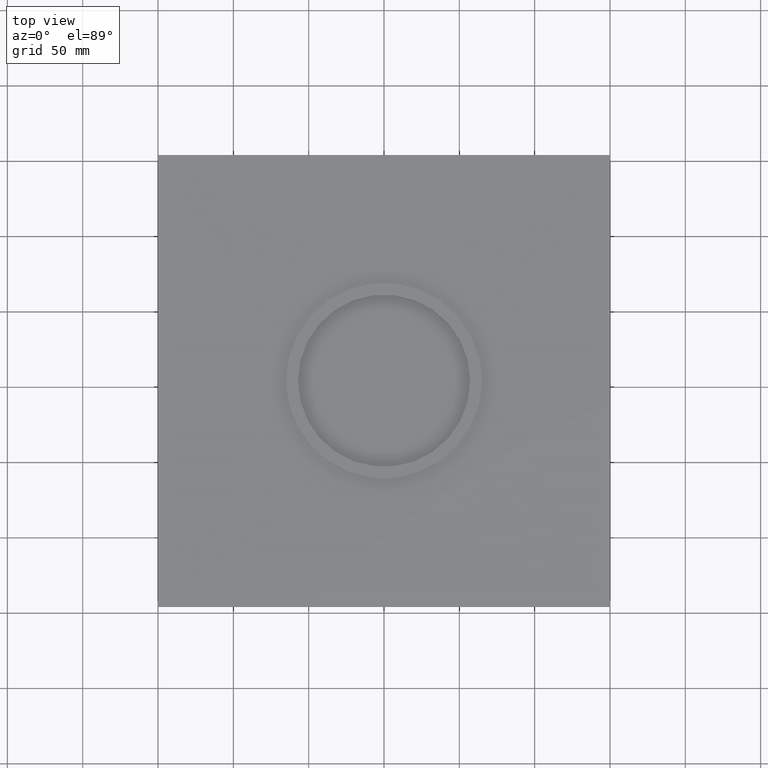
[diagram: clean part render]
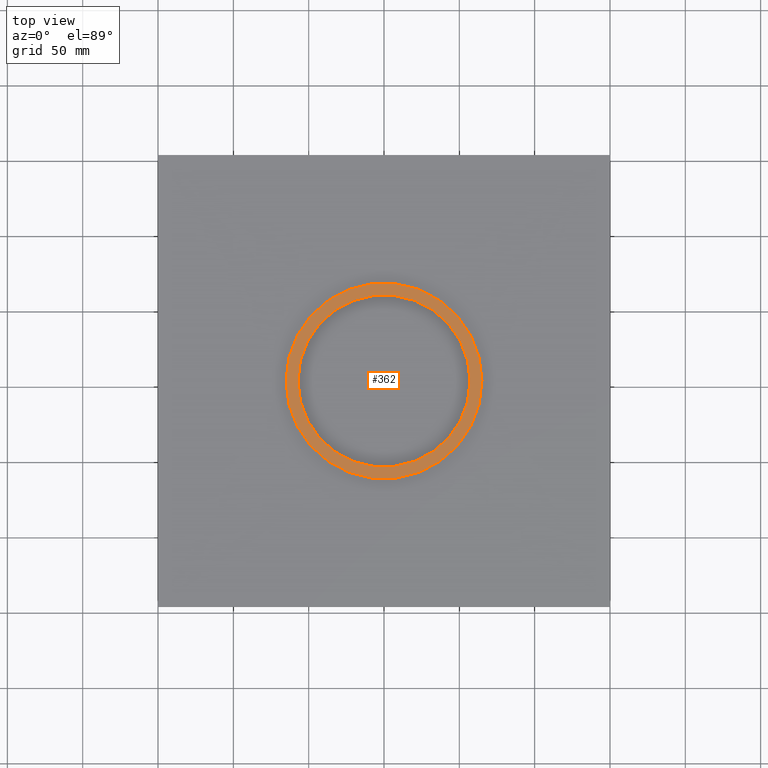
[diagram: same view with one face highlighted and labeled with its STEP entity id]
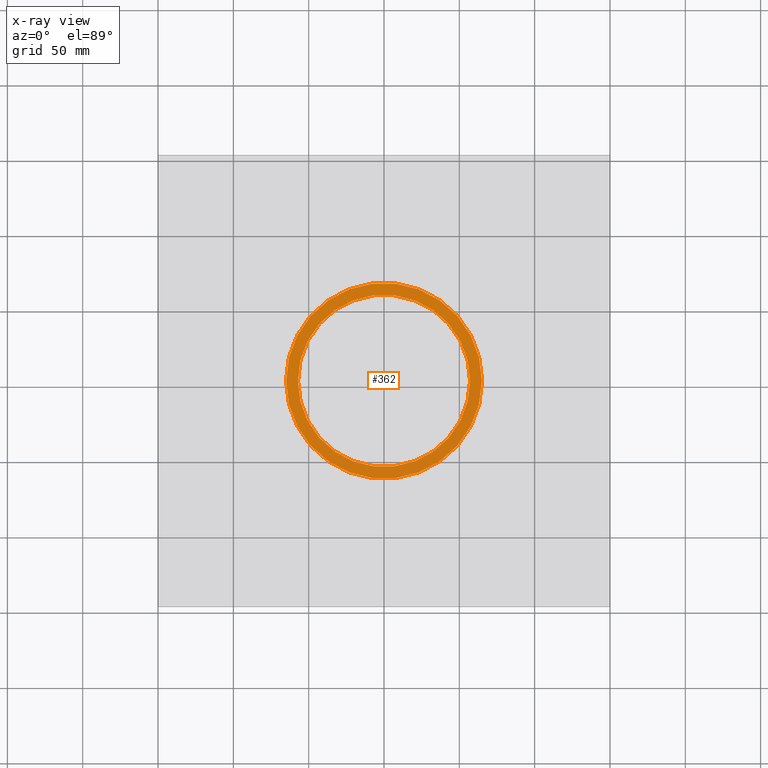
[diagram: x-ray of the same camera — body ghosted, the highlighted face saturated]
A machine part, top view. The second image highlights one B-rep face of the part: STEP entity #362.
The next image is the same camera in x-ray: the body ghosted, the highlighted face saturated — about 0% of this face is hidden behind the body in this view.
In plain terms, the highlighted planar face has unit normal (0, 0, 1).
Its self-contained STEP definition (entity closure, byte-faithful):
#22=FACE_BOUND('',#72,.T.);
#26=PLANE('',#417);
#46=FACE_OUTER_BOUND('',#71,.T.);
#71=EDGE_LOOP('',(#273,#274));
#72=EDGE_LOOP('',(#275,#276));
#157=CIRCLE('',#405,57.15);
#159=CIRCLE('',#408,57.15);
#161=CIRCLE('',#411,65.);
#163=CIRCLE('',#414,65.);
#173=VERTEX_POINT('',#560);
#174=VERTEX_POINT('',#561);
#177=VERTEX_POINT('',#572);
#178=VERTEX_POINT('',#573);
#205=EDGE_CURVE('',#173,#174,#157,.T.);
#209=EDGE_CURVE('',#174,#173,#159,.T.);
#211=EDGE_CURVE('',#177,#178,#161,.T.);
#215=EDGE_CURVE('',#178,#177,#163,.T.);
#273=ORIENTED_EDGE('',*,*,#215,.T.);
#274=ORIENTED_EDGE('',*,*,#211,.T.);
#275=ORIENTED_EDGE('',*,*,#209,.T.);
#276=ORIENTED_EDGE('',*,*,#205,.T.);
#362=ADVANCED_FACE('',(#46,#22),#26,.T.);
#405=AXIS2_PLACEMENT_3D('',#562,#448,#449);
#408=AXIS2_PLACEMENT_3D('',#569,#456,#457);
#411=AXIS2_PLACEMENT_3D('',#574,#462,#463);
#414=AXIS2_PLACEMENT_3D('',#581,#470,#471);
#417=AXIS2_PLACEMENT_3D('',#584,#476,#477);
#448=DIRECTION('center_axis',(0.,0.,-1.));
#449=DIRECTION('ref_axis',(1.,1.61554457443259E-15,0.));
#456=DIRECTION('center_axis',(0.,0.,-1.));
#457=DIRECTION('ref_axis',(1.,1.61554457443259E-15,0.));
#462=DIRECTION('center_axis',(0.,0.,1.));
#463=DIRECTION('ref_axis',(1.,-1.61554457443259E-15,0.));
#470=DIRECTION('center_axis',(0.,0.,1.));
#471=DIRECTION('ref_axis',(1.,-1.61554457443259E-15,0.));
#476=DIRECTION('center_axis',(0.,0.,1.));
#477=DIRECTION('ref_axis',(0.,1.,0.));
#560=CARTESIAN_POINT('',(57.15,5.13131780325232E-13,6.00000000000062));
#561=CARTESIAN_POINT('',(-57.15,9.92094243816027E-15,6.00000000000062));
#562=CARTESIAN_POINT('Origin',(0.,1.02249314866983E-13,6.00000000000062));
#569=CARTESIAN_POINT('Origin',(0.,1.02249314866983E-13,6.00000000000062));
#572=CARTESIAN_POINT('',(65.,-1.65617329914249E-13,6.00000000000062));
#573=CARTESIAN_POINT('',(-65.,4.06713456833952E-13,6.00000000000062));
#574=CARTESIAN_POINT('Origin',(0.,3.01703059495834E-13,6.00000000000062));
#581=CARTESIAN_POINT('Origin',(0.,3.01703059495834E-13,6.00000000000062));
#584=CARTESIAN_POINT('Origin',(65.,1.96692662157716E-13,6.00000000000062));